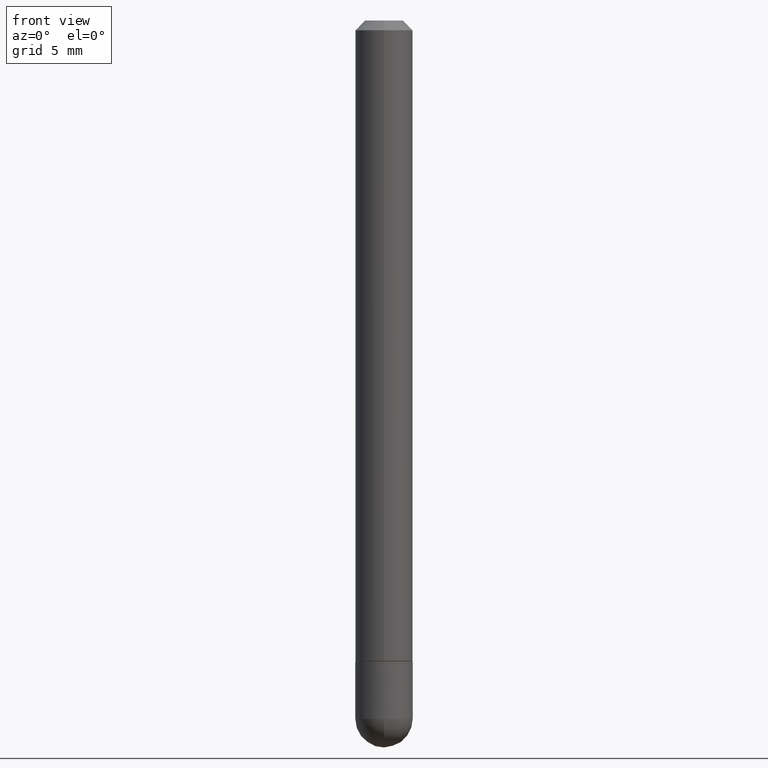
[diagram: clean part render]
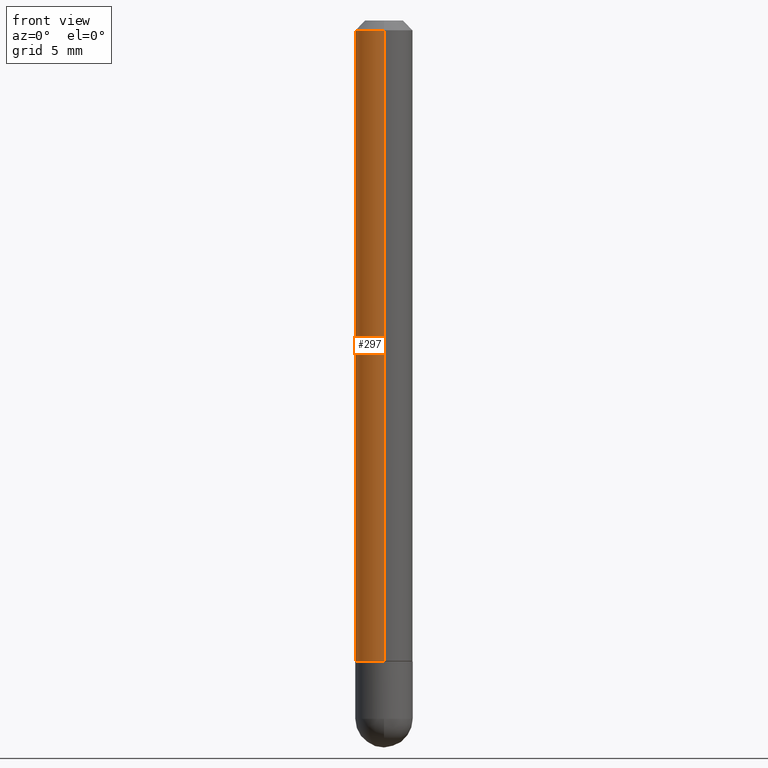
[diagram: same view with one face highlighted and labeled with its STEP entity id]
A machine part, front view. The second image highlights one B-rep face of the part: STEP entity #297.
In plain terms, the highlighted cylindrical surface (edge-blend (fillet) strip) has radius 1.4999 mm, axis along (-0, 0, 1).
Its self-contained STEP definition (entity closure, byte-faithful):
#1 = AXIS2_PLACEMENT_3D ( 'NONE', #118, #87, #245 ) ;
#2 = CARTESIAN_POINT ( 'NONE',  ( 3.223502653315129586E-29, -4.600536364074402946E-15, -1.317899999999999627 ) ) ;
#18 = EDGE_CURVE ( 'NONE', #298, #287, #182, .T. ) ;
#21 = LINE ( 'NONE', #373, #313 ) ;
#26 = DIRECTION ( 'NONE',  ( -6.982962677686265922E-15, -1.000000000000000000, 4.626330217890355926E-15 ) ) ;
#42 = VERTEX_POINT ( 'NONE', #243 ) ;
#45 = ORIENTED_EDGE ( 'NONE', *, *, #185, .F. ) ;
#60 = CARTESIAN_POINT ( 'NONE',  ( 4.195754854663396902E-16, 0.05905000000000008159, -2.061322348422444104E-16 ) ) ;
#62 = AXIS2_PLACEMENT_3D ( 'NONE', #2, #316, #26 ) ;
#63 = EDGE_CURVE ( 'NONE', #298, #42, #244, .T. ) ;
#87 = DIRECTION ( 'NONE',  ( -2.445938730795303738E-29, 3.490808380054938555E-15, 1.000000000000000000 ) ) ;
#91 = AXIS2_PLACEMENT_3D ( 'NONE', #380, #93, #247 ) ;
#93 = DIRECTION ( 'NONE',  ( -2.445938730795303738E-29, 3.490808380054938555E-15, 1.000000000000000000 ) ) ;
#114 = EDGE_LOOP ( 'NONE', ( #334, #143, #343, #45 ) ) ;
#118 = CARTESIAN_POINT ( 'NONE',  ( 0.000000000000000000, 0.000000000000000000, 0.000000000000000000 ) ) ;
#131 = CIRCLE ( 'NONE', #91, 0.05905000000000000526 ) ;
#135 = CYLINDRICAL_SURFACE ( 'NONE', #1, 0.05905000000000008159 ) ;
#140 = VECTOR ( 'NONE', #216, 39.37007874015748143 ) ;
#143 = ORIENTED_EDGE ( 'NONE', *, *, #63, .T. ) ;
#182 = LINE ( 'NONE', #60, #140 ) ;
#185 = EDGE_CURVE ( 'NONE', #287, #404, #131, .T. ) ;
#192 = EDGE_CURVE ( 'NONE', #42, #404, #21, .T. ) ;
#200 = CARTESIAN_POINT ( 'NONE',  ( 4.123439461173745257E-16, 0.05904999999999994281, -0.02000000000000022593 ) ) ;
#214 = CARTESIAN_POINT ( 'NONE',  ( 4.195754854663563056E-16, 0.05904999999999557131, -1.317899999999999849 ) ) ;
#216 = DIRECTION ( 'NONE',  ( -2.445938730795303738E-29, 3.490808380054938555E-15, 1.000000000000000000 ) ) ;
#233 = CARTESIAN_POINT ( 'NONE',  ( -4.051124067684084738E-16, -0.05905000000000007465, -0.01999999999999981654 ) ) ;
#234 = DIRECTION ( 'NONE',  ( -2.445938730795303738E-29, 3.490808380054938555E-15, 1.000000000000000000 ) ) ;
#243 = CARTESIAN_POINT ( 'NONE',  ( -4.123439461173429713E-16, -0.05905000000000477228, -1.317899999999999405 ) ) ;
#244 = CIRCLE ( 'NONE', #62, 0.05905000000000017180 ) ;
#245 = DIRECTION ( 'NONE',  ( -6.982962677686265922E-15, -1.000000000000000000, 3.490808380054938555E-15 ) ) ;
#247 = DIRECTION ( 'NONE',  ( -6.982962677686265922E-15, -1.000000000000000000, 3.469747663417777002E-15 ) ) ;
#287 = VERTEX_POINT ( 'NONE', #200 ) ;
#297 = ADVANCED_FACE ( 'NONE', ( #303 ), #135, .T. ) ;
#298 = VERTEX_POINT ( 'NONE', #214 ) ;
#303 = FACE_OUTER_BOUND ( 'NONE', #114, .T. ) ;
#313 = VECTOR ( 'NONE', #234, 39.37007874015748143 ) ;
#316 = DIRECTION ( 'NONE',  ( -2.445938730795303738E-29, 3.490808380054938555E-15, 1.000000000000000000 ) ) ;
#334 = ORIENTED_EDGE ( 'NONE', *, *, #18, .F. ) ;
#343 = ORIENTED_EDGE ( 'NONE', *, *, #192, .T. ) ;
#373 = CARTESIAN_POINT ( 'NONE',  ( -4.123439461173745750E-16, -0.05905000000000008159, 2.061322348422444104E-16 ) ) ;
#380 = CARTESIAN_POINT ( 'NONE',  ( 4.891877461590611925E-31, -6.981616760109884161E-17, -0.02000000000000002123 ) ) ;
#404 = VERTEX_POINT ( 'NONE', #233 ) ;